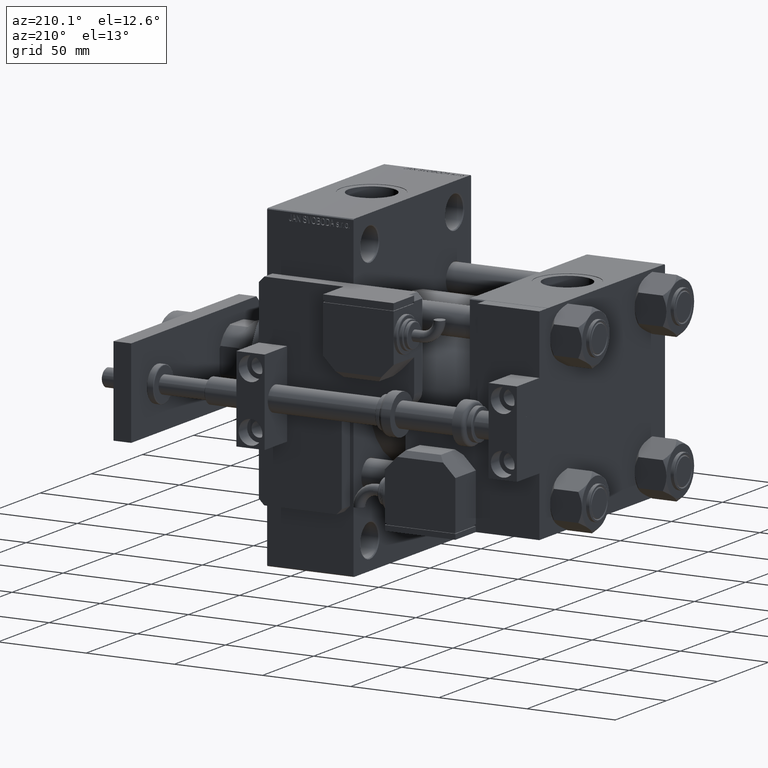
[diagram: clean part render]
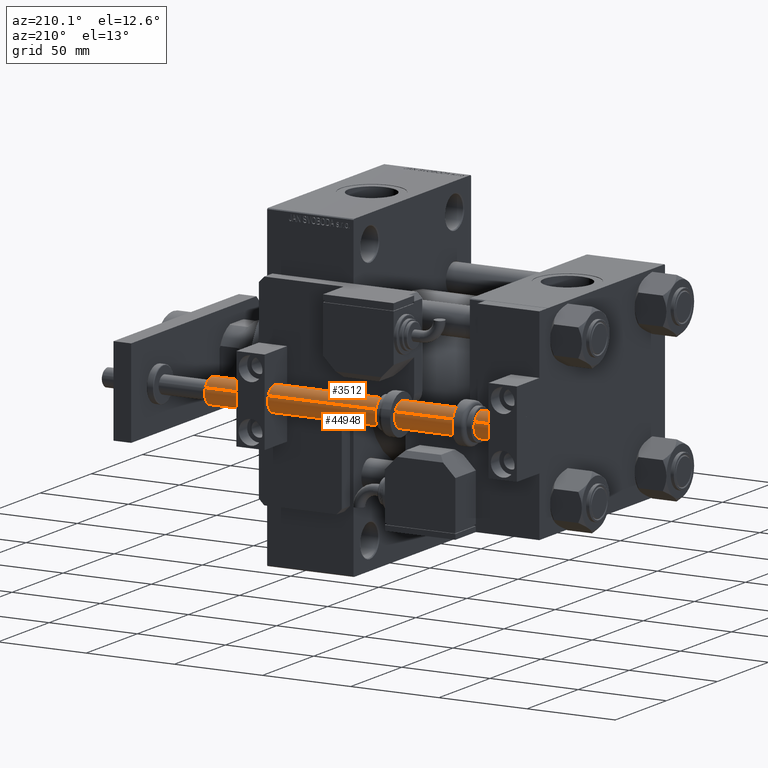
[diagram: same view with one multi-face feature highlighted, each face labeled with its STEP entity id]
A machine part, auxiliary view. The highlighted faces form ONE feature: a constant-radius fillet chain: 2 tangent blend faces with common blend radius 7 mm. The faces share edges in the B-rep.
Their STEP definitions:
[1] entity #44948 (Cylinder):
#4513 = EDGE_CURVE ( 'NONE', #4554, #34599, #26163, .T. ) ;
#4554 = VERTEX_POINT ( 'NONE', #45924 ) ;
#6772 = CARTESIAN_POINT ( 'NONE',  ( -7.000000000000000000, 0.000000000000000000, 179.0000000000000000 ) ) ;
#6829 = CARTESIAN_POINT ( 'NONE',  ( 7.000000000000000000, 8.572527594031471218E-16, 179.0000000000000000 ) ) ;
#7154 = ORIENTED_EDGE ( 'NONE', *, *, #30682, .F. ) ;
#7764 = EDGE_LOOP ( 'NONE', ( #15747, #31660, #23998, #7154 ) ) ;
#11939 = EDGE_CURVE ( 'NONE', #28824, #37421, #23917, .T. ) ;
#12673 = DIRECTION ( 'NONE',  ( 1.000000000000000000, 0.000000000000000000, 0.000000000000000000 ) ) ;
#15747 = ORIENTED_EDGE ( 'NONE', *, *, #4513, .F. ) ;
#17027 = CARTESIAN_POINT ( 'NONE',  ( 0.000000000000000000, 0.000000000000000000, 0.3000000000001890044 ) ) ;
#18031 = DIRECTION ( 'NONE',  ( -0.000000000000000000, -0.000000000000000000, -1.000000000000000000 ) ) ;
#19593 = FACE_OUTER_BOUND ( 'NONE', #7764, .T. ) ;
#21235 = DIRECTION ( 'NONE',  ( -0.000000000000000000, -0.000000000000000000, -1.000000000000000000 ) ) ;
#22630 = AXIS2_PLACEMENT_3D ( 'NONE', #37216, #29589, #46191 ) ;
#23186 = CARTESIAN_POINT ( 'NONE',  ( -7.000000000000000000, 0.000000000000000000, 0.3000000000001890044 ) ) ;
#23917 = CIRCLE ( 'NONE', #37800, 7.000000000000000000 ) ;
#23998 = ORIENTED_EDGE ( 'NONE', *, *, #11939, .T. ) ;
#26163 = CIRCLE ( 'NONE', #22630, 7.000000000000000000 ) ;
#26896 = CARTESIAN_POINT ( 'NONE',  ( 7.000000000000000000, 8.572527594031471218E-16, 0.3000000000001890044 ) ) ;
#27481 = DIRECTION ( 'NONE',  ( -1.000000000000000000, 0.000000000000000000, 0.000000000000000000 ) ) ;
#28824 = VERTEX_POINT ( 'NONE', #26896 ) ;
#29589 = DIRECTION ( 'NONE',  ( 0.000000000000000000, 0.000000000000000000, 1.000000000000000000 ) ) ;
#30682 = EDGE_CURVE ( 'NONE', #34599, #37421, #32396, .T. ) ;
#31660 = ORIENTED_EDGE ( 'NONE', *, *, #51445, .T. ) ;
#32396 = LINE ( 'NONE', #50082, #43345 ) ;
#32861 = VECTOR ( 'NONE', #18031, 1000.000000000000000 ) ;
#34599 = VERTEX_POINT ( 'NONE', #6772 ) ;
#37216 = CARTESIAN_POINT ( 'NONE',  ( 0.000000000000000000, 0.000000000000000000, 179.0000000000000000 ) ) ;
#37421 = VERTEX_POINT ( 'NONE', #23186 ) ;
#37800 = AXIS2_PLACEMENT_3D ( 'NONE', #17027, #53790, #12673 ) ;
#39509 = LINE ( 'NONE', #6829, #32861 ) ;
#40260 = CYLINDRICAL_SURFACE ( 'NONE', #49973, 7.000000000000000000 ) ;
#43345 = VECTOR ( 'NONE', #21235, 1000.000000000000000 ) ;
#44948 = ADVANCED_FACE ( 'NONE', ( #19593 ), #40260, .T. ) ;
#45924 = CARTESIAN_POINT ( 'NONE',  ( 7.000000000000000000, 8.572527594031471218E-16, 179.0000000000000000 ) ) ;
#46191 = DIRECTION ( 'NONE',  ( 1.000000000000000000, 0.000000000000000000, 0.000000000000000000 ) ) ;
#48427 = DIRECTION ( 'NONE',  ( -0.000000000000000000, -0.000000000000000000, -1.000000000000000000 ) ) ;
#49973 = AXIS2_PLACEMENT_3D ( 'NONE', #53599, #48427, #27481 ) ;
#50082 = CARTESIAN_POINT ( 'NONE',  ( -7.000000000000000000, 0.000000000000000000, 179.0000000000000000 ) ) ;
#51445 = EDGE_CURVE ( 'NONE', #4554, #28824, #39509, .T. ) ;
#53599 = CARTESIAN_POINT ( 'NONE',  ( 0.000000000000000000, 0.000000000000000000, 179.0000000000000000 ) ) ;
#53790 = DIRECTION ( 'NONE',  ( -0.000000000000000000, -0.000000000000000000, 1.000000000000000000 ) ) ;
[2] entity #3512 (Cylinder):
#3512 = ADVANCED_FACE ( 'NONE', ( #21418 ), #12165, .T. ) ;
#4554 = VERTEX_POINT ( 'NONE', #45924 ) ;
#5423 = ORIENTED_EDGE ( 'NONE', *, *, #14136, .F. ) ;
#6691 = AXIS2_PLACEMENT_3D ( 'NONE', #36919, #46155, #37711 ) ;
#6772 = CARTESIAN_POINT ( 'NONE',  ( -7.000000000000000000, 0.000000000000000000, 179.0000000000000000 ) ) ;
#6829 = CARTESIAN_POINT ( 'NONE',  ( 7.000000000000000000, 8.572527594031471218E-16, 179.0000000000000000 ) ) ;
#12165 = CYLINDRICAL_SURFACE ( 'NONE', #24430, 7.000000000000000000 ) ;
#13266 = EDGE_LOOP ( 'NONE', ( #22426, #5423, #24419, #31080 ) ) ;
#14136 = EDGE_CURVE ( 'NONE', #34599, #4554, #28059, .T. ) ;
#18031 = DIRECTION ( 'NONE',  ( -0.000000000000000000, -0.000000000000000000, -1.000000000000000000 ) ) ;
#21153 = CARTESIAN_POINT ( 'NONE',  ( 0.000000000000000000, 0.000000000000000000, 179.0000000000000000 ) ) ;
#21235 = DIRECTION ( 'NONE',  ( -0.000000000000000000, -0.000000000000000000, -1.000000000000000000 ) ) ;
#21418 = FACE_OUTER_BOUND ( 'NONE', #13266, .T. ) ;
#21684 = DIRECTION ( 'NONE',  ( -1.000000000000000000, 0.000000000000000000, 0.000000000000000000 ) ) ;
#22426 = ORIENTED_EDGE ( 'NONE', *, *, #51445, .F. ) ;
#23186 = CARTESIAN_POINT ( 'NONE',  ( -7.000000000000000000, 0.000000000000000000, 0.3000000000001890044 ) ) ;
#24419 = ORIENTED_EDGE ( 'NONE', *, *, #30682, .T. ) ;
#24430 = AXIS2_PLACEMENT_3D ( 'NONE', #21153, #37734, #21684 ) ;
#26485 = DIRECTION ( 'NONE',  ( 0.000000000000000000, 0.000000000000000000, 1.000000000000000000 ) ) ;
#26896 = CARTESIAN_POINT ( 'NONE',  ( 7.000000000000000000, 8.572527594031471218E-16, 0.3000000000001890044 ) ) ;
#26966 = EDGE_CURVE ( 'NONE', #37421, #28824, #29331, .T. ) ;
#28059 = CIRCLE ( 'NONE', #35863, 7.000000000000000000 ) ;
#28824 = VERTEX_POINT ( 'NONE', #26896 ) ;
#29331 = CIRCLE ( 'NONE', #6691, 7.000000000000000000 ) ;
#30682 = EDGE_CURVE ( 'NONE', #34599, #37421, #32396, .T. ) ;
#31080 = ORIENTED_EDGE ( 'NONE', *, *, #26966, .T. ) ;
#32396 = LINE ( 'NONE', #50082, #43345 ) ;
#32861 = VECTOR ( 'NONE', #18031, 1000.000000000000000 ) ;
#34098 = CARTESIAN_POINT ( 'NONE',  ( 0.000000000000000000, 0.000000000000000000, 179.0000000000000000 ) ) ;
#34599 = VERTEX_POINT ( 'NONE', #6772 ) ;
#35185 = DIRECTION ( 'NONE',  ( 1.000000000000000000, 0.000000000000000000, 0.000000000000000000 ) ) ;
#35863 = AXIS2_PLACEMENT_3D ( 'NONE', #34098, #26485, #35185 ) ;
#36919 = CARTESIAN_POINT ( 'NONE',  ( 0.000000000000000000, 0.000000000000000000, 0.3000000000001890044 ) ) ;
#37421 = VERTEX_POINT ( 'NONE', #23186 ) ;
#37711 = DIRECTION ( 'NONE',  ( 1.000000000000000000, 0.000000000000000000, 0.000000000000000000 ) ) ;
#37734 = DIRECTION ( 'NONE',  ( -0.000000000000000000, -0.000000000000000000, -1.000000000000000000 ) ) ;
#39509 = LINE ( 'NONE', #6829, #32861 ) ;
#43345 = VECTOR ( 'NONE', #21235, 1000.000000000000000 ) ;
#45924 = CARTESIAN_POINT ( 'NONE',  ( 7.000000000000000000, 8.572527594031471218E-16, 179.0000000000000000 ) ) ;
#46155 = DIRECTION ( 'NONE',  ( -0.000000000000000000, -0.000000000000000000, 1.000000000000000000 ) ) ;
#50082 = CARTESIAN_POINT ( 'NONE',  ( -7.000000000000000000, 0.000000000000000000, 179.0000000000000000 ) ) ;
#51445 = EDGE_CURVE ( 'NONE', #4554, #28824, #39509, .T. ) ;